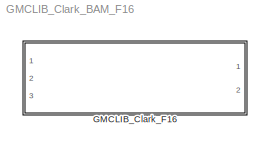
MODEL GMCLIB_Clark_BAM_F16
KIND model
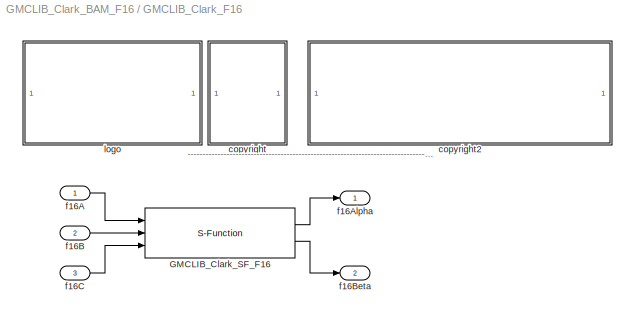
BLOCK [SubSystem] GMCLIB_Clark_F16
  FunctionWithSeparateData = off
  MaskDescription = Bit accurate model of Clarke transformation 3ph -> 2ph.
  MaskDisplay = color('black');port_label('input',1,'f16A');port_label('input',2,'f16B');port_label('input',3,'f16C');port_label('output',1,'f16Alpha');port_label('output',2,'f16Beta');color('black');disp('GMCLIB_Clark_F16');color('blue');text(tX,tY, 'BAM', 'horizontalAlignment', 'center');
  MaskHideContents = off
  MaskIconFrame = on
  MaskIconOpaque = on
  MaskIconRotate = none
  MaskIconUnits = pixels
  MaskInitialization = pos = get_param(gcb, 'Position');width = pos(3) - pos(1); height = pos(4) - pos(2);tX=width/2;tY=height*0.9;
  MaskPortRotate = default
  MaskType = GMCLIB_Clark_F16
  MinAlgLoopOccurrences = off
  Opaque = off
  Ports = [3, 2]
  PropExecContextOutsideSubsystem = off
  RTWSystemCode = Auto
  RequestExecContextInheritance = off
BLOCK [S-Function] GMCLIB_Clark_F16/GMCLIB_Clark_SF_F16
  EnableBusSupport = off
  FunctionName = GMCLIB_Clark_SF_F16
  Ports = [3, 2]
BLOCK [SubSystem] GMCLIB_Clark_F16/<copyright redacted>
  FunctionWithSeparateData = off
  MaskDisplay = text(10,90,'FILE:');text(10,75,'DESRIPTION:')text(10,60,'<copyright redacted>
  MaskHideContents = off
  MaskIconFrame = off
  MaskIconOpaque = on
  MaskIconRotate = none
  MaskIconUnits = pixels
  MaskPortRotate = default
  MinAlgLoopOccurrences = off
  Opaque = off
  Ports = []
  PropExecContextOutsideSubsystem = off
  RTWSystemCode = Auto
  RequestExecContextInheritance = off
BLOCK [SubSystem] GMCLIB_Clark_F16/copyright2
  FunctionWithSeparateData = off
  MaskDisplay = text(10,90,'GMCLIB_Clark_BAM_F16.mdl');text(10,75,'Clarke transformation.');text(10,60,'Freescale')text(10,45,'0.1');text(10,30,'29-Aug-2011');
  MaskHideContents = off
  MaskIconFrame = off
  MaskIconOpaque = on
  MaskIconRotate = none
  MaskIconUnits = pixels
  MaskPortRotate = default
  MinAlgLoopOccurrences = off
  Opaque = off
  Ports = []
  PropExecContextOutsideSubsystem = off
  RTWSystemCode = Auto
  RequestExecContextInheritance = off
BLOCK [Inport] GMCLIB_Clark_F16/f16A
  IconDisplay = Port number
  OutDataType = fixdt(1, 16)
  OutScaling = 2^0
BLOCK [Outport] GMCLIB_Clark_F16/f16Alpha
  IconDisplay = Port number
  OutDataType = fixdt(1, 16)
  OutScaling = 2^0
BLOCK [Inport] GMCLIB_Clark_F16/f16B
  IconDisplay = Port number
  OutDataType = fixdt(1, 16)
  OutScaling = 2^0
  Port = 2
BLOCK [Outport] GMCLIB_Clark_F16/f16Beta
  IconDisplay = Port number
  OutDataType = fixdt(1, 16)
  OutScaling = 2^0
  Port = 2
BLOCK [Inport] GMCLIB_Clark_F16/f16C
  IconDisplay = Port number
  OutDataType = fixdt(1, 16)
  OutScaling = 2^0
  Port = 3
BLOCK [SubSystem] GMCLIB_Clark_F16/logo
  FunctionWithSeparateData = off
  MaskDisplay = image(imread('logo.jpg'))
  MaskHideContents = off
  MaskIconFrame = off
  MaskIconOpaque = on
  MaskIconRotate = none
  MaskIconUnits = autoscale
  MaskPortRotate = default
  MinAlgLoopOccurrences = off
  Opaque = off
  Ports = []
  PropExecContextOutsideSubsystem = off
  RTWSystemCode = Auto
  RequestExecContextInheritance = off
ANNOTATION GMCLIB_Clark_F16: ---------------------------------------------------------------------------------------------------------------------------------------------------------------------------------------------------
LINE GMCLIB_Clark_F16/GMCLIB_Clark_SF_F16:1 -> GMCLIB_Clark_F16/f16Alpha:1
LINE GMCLIB_Clark_F16/GMCLIB_Clark_SF_F16:2 -> GMCLIB_Clark_F16/f16Beta:1
LINE GMCLIB_Clark_F16/f16A:1 -> GMCLIB_Clark_F16/GMCLIB_Clark_SF_F16:1
LINE GMCLIB_Clark_F16/f16B:1 -> GMCLIB_Clark_F16/GMCLIB_Clark_SF_F16:2
LINE GMCLIB_Clark_F16/f16C:1 -> GMCLIB_Clark_F16/GMCLIB_Clark_SF_F16:3
